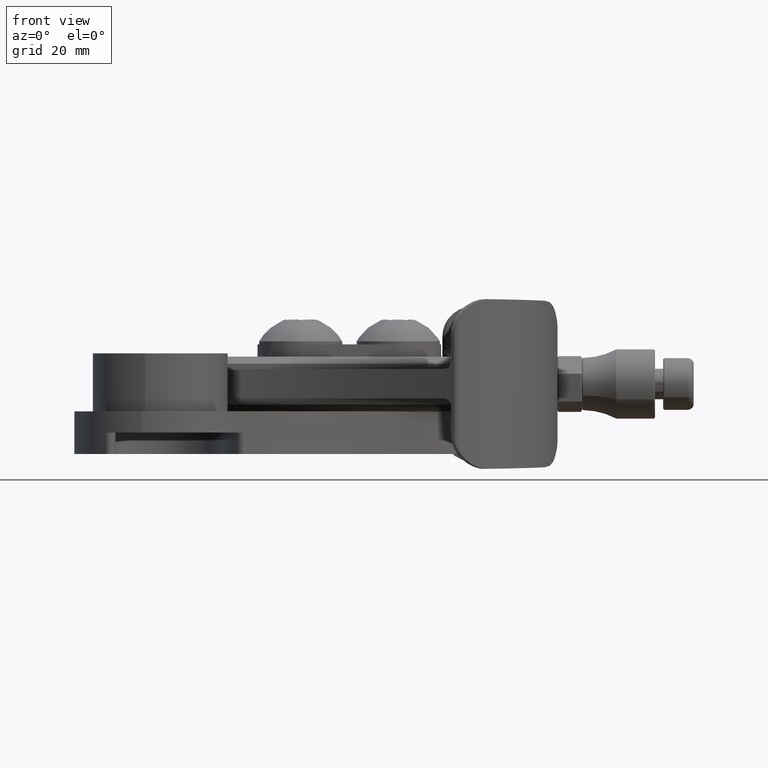
[diagram: clean part render]
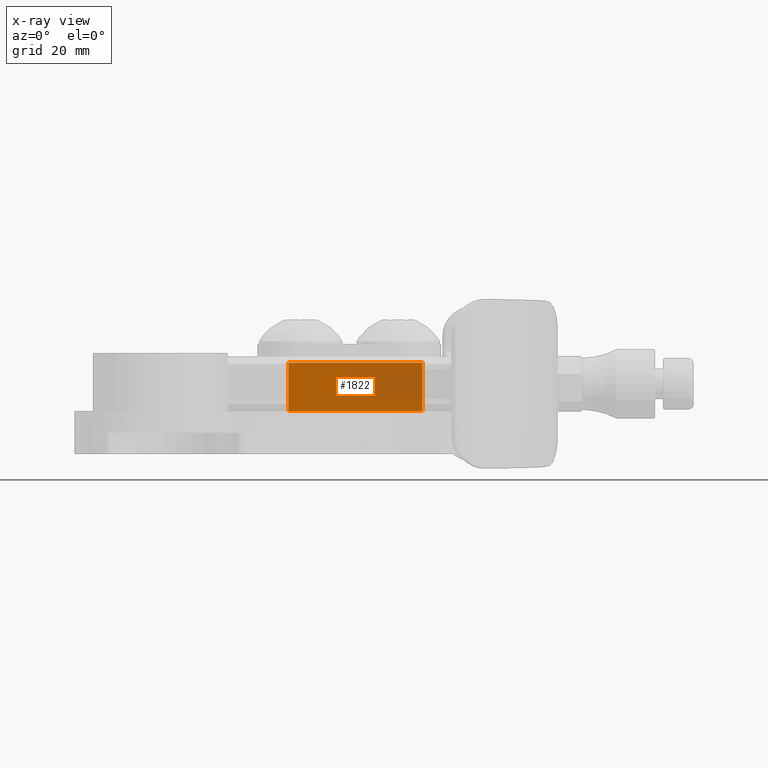
[diagram: x-ray — body ghosted, one internal face saturated and labeled with its STEP entity id]
A machine part, front view, then the same camera in x-ray: the body is ghosted and one INTERNAL B-rep face — a face not visible from any outside direction — is saturated and labeled: STEP entity #1822.
In plain terms, the highlighted planar face has unit normal (-0, 1, 0).
Its self-contained STEP definition (entity closure, byte-faithful):
#30 = EDGE_CURVE ( 'NONE', #3626, #2150, #2200, .T. ) ;
#504 = LINE ( 'NONE', #8571, #6480 ) ;
#715 = CARTESIAN_POINT ( 'NONE',  ( 5.486986859019859608, -1.303514732017755140, 0.2750000000000001887 ) ) ;
#960 = CARTESIAN_POINT ( 'NONE',  ( 5.679584732058002849, -2.147826321007001660, 0.5899999999999999689 ) ) ;
#1177 = PLANE ( 'NONE',  #6751 ) ;
#1276 = ORIENTED_EDGE ( 'NONE', *, *, #3997, .F. ) ;
#1393 = CARTESIAN_POINT ( 'NONE',  ( 5.679584732058002849, -2.147826321007001660, 0.5899999999999999689 ) ) ;
#1822 = ADVANCED_FACE ( 'NONE', ( #9093 ), #1177, .F. ) ;
#1957 = VECTOR ( 'NONE', #3828, 39.37007874015748143 ) ;
#2150 = VERTEX_POINT ( 'NONE', #4189 ) ;
#2200 = LINE ( 'NONE', #1393, #1957 ) ;
#2223 = DIRECTION ( 'NONE',  ( -0.2223993914989597087, 0.9749556454838815833, 5.546678239835230499E-32 ) ) ;
#2501 = DIRECTION ( 'NONE',  ( 0.9749556454838816943, 0.2223993914989597087, -3.882674767884661875E-29 ) ) ;
#2856 = VECTOR ( 'NONE', #9308, 39.37007874015748143 ) ;
#3129 = VERTEX_POINT ( 'NONE', #715 ) ;
#3172 = EDGE_CURVE ( 'NONE', #8888, #3129, #504, .T. ) ;
#3224 = LINE ( 'NONE', #4886, #6943 ) ;
#3617 = DIRECTION ( 'NONE',  ( 3.793927916047303652E-29, 8.614299455255228524E-30, -1.000000000000000000 ) ) ;
#3626 = VERTEX_POINT ( 'NONE', #960 ) ;
#3633 = ORIENTED_EDGE ( 'NONE', *, *, #4990, .F. ) ;
#3828 = DIRECTION ( 'NONE',  ( 3.793927916047303652E-29, 8.614299455255228524E-30, -1.000000000000000000 ) ) ;
#3901 = EDGE_LOOP ( 'NONE', ( #1276, #7353, #3633, #4908 ) ) ;
#3997 = EDGE_CURVE ( 'NONE', #2150, #3129, #3224, .T. ) ;
#4189 = CARTESIAN_POINT ( 'NONE',  ( 5.679584732058002849, -2.147826321007001660, 0.2750000000000002998 ) ) ;
#4461 = DIRECTION ( 'NONE',  ( -0.2223993914989597087, 0.9749556454838816943, 5.546678239835230499E-32 ) ) ;
#4607 = LINE ( 'NONE', #5969, #2856 ) ;
#4886 = CARTESIAN_POINT ( 'NONE',  ( 5.679584732057958441, -2.147826321006797823, 0.2750000000000002998 ) ) ;
#4908 = ORIENTED_EDGE ( 'NONE', *, *, #3172, .T. ) ;
#4990 = EDGE_CURVE ( 'NONE', #8888, #3626, #4607, .T. ) ;
#5683 = CARTESIAN_POINT ( 'NONE',  ( 5.486986859019860496, -1.303514732017754918, 0.5899999999999999689 ) ) ;
#5969 = CARTESIAN_POINT ( 'NONE',  ( 5.486986859019860496, -1.303514732017754918, 0.5899999999999999689 ) ) ;
#6480 = VECTOR ( 'NONE', #3617, 39.37007874015748143 ) ;
#6751 = AXIS2_PLACEMENT_3D ( 'NONE', #5683, #2501, #4461 ) ;
#6943 = VECTOR ( 'NONE', #2223, 39.37007874015748143 ) ;
#7353 = ORIENTED_EDGE ( 'NONE', *, *, #30, .F. ) ;
#7381 = CARTESIAN_POINT ( 'NONE',  ( 5.486986859019860496, -1.303514732017754918, 0.5899999999999999689 ) ) ;
#8571 = CARTESIAN_POINT ( 'NONE',  ( 5.486986859019860496, -1.303514732017754918, 0.5899999999999999689 ) ) ;
#8888 = VERTEX_POINT ( 'NONE', #7381 ) ;
#9093 = FACE_OUTER_BOUND ( 'NONE', #3901, .T. ) ;
#9308 = DIRECTION ( 'NONE',  ( 0.2223993914989597087, -0.9749556454838815833, -5.546678239835230499E-32 ) ) ;